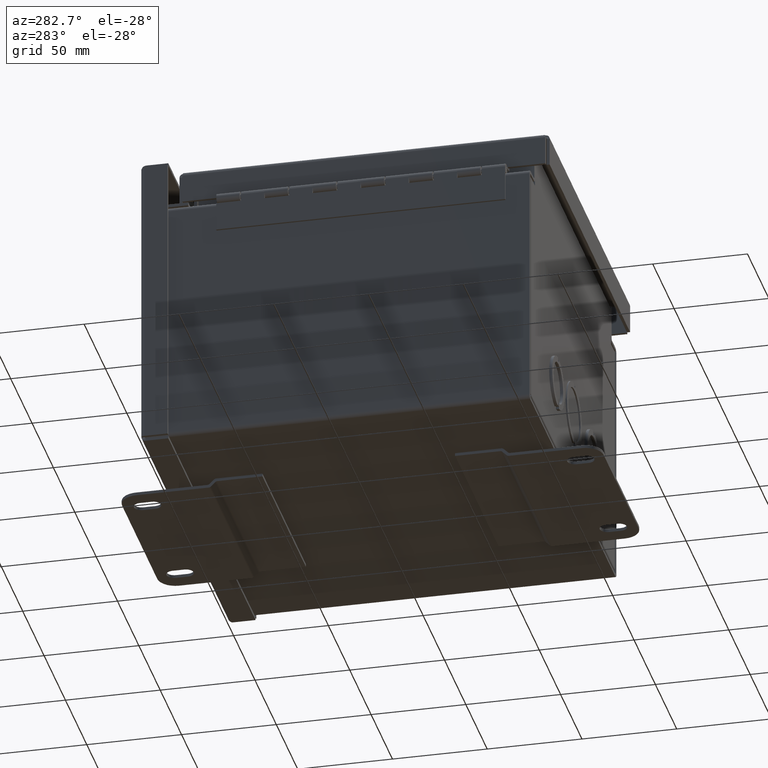
[diagram: clean part render]
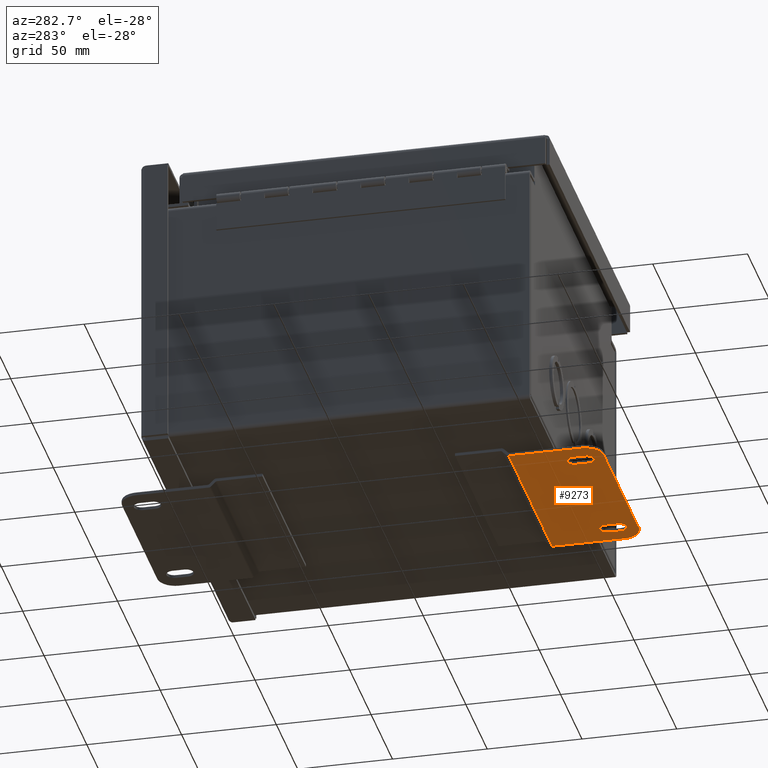
[diagram: same view with one face highlighted and labeled with its STEP entity id]
A machine part, auxiliary view. The second image highlights one B-rep face of the part: STEP entity #9273.
In plain terms, the highlighted planar face has unit normal (0, 0, -1).
Its self-contained STEP definition (entity closure, byte-faithful):
#188=FACE_BOUND($,#1510,.T.);
#189=FACE_BOUND($,#1511,.T.);
#190=FACE_BOUND($,#1512,.T.);
#546=PLANE($,#9904);
#1510=EDGE_LOOP($,(#7324,#7325,#7326,#7327));
#1511=EDGE_LOOP($,(#7328,#7329,#7330,#7331));
#1512=EDGE_LOOP($,(#7332,#7333,#7334,#7335,#7336,#7337));
#1874=CIRCLE($,#9885,0.15625);
#1876=CIRCLE($,#9889,0.15625);
#1878=CIRCLE($,#9893,0.15625);
#1880=CIRCLE($,#9897,0.15625);
#1882=CIRCLE($,#9901,0.375);
#1884=CIRCLE($,#9905,0.375);
#2608=LINE($,#14834,#3534);
#2612=LINE($,#14845,#3538);
#2616=LINE($,#14858,#3542);
#2620=LINE($,#14869,#3546);
#2624=LINE($,#14882,#3550);
#2627=LINE($,#14888,#3553);
#2628=LINE($,#14890,#3554);
#2629=LINE($,#14892,#3555);
#3534=VECTOR($,#11619,0.25);
#3538=VECTOR($,#11631,0.25);
#3542=VECTOR($,#11643,0.25);
#3546=VECTOR($,#11655,0.25);
#3550=VECTOR($,#11667,3.25);
#3553=VECTOR($,#11672,1.50822330470336);
#3554=VECTOR($,#11673,4.);
#3555=VECTOR($,#11674,1.50822330470336);
#4284=VERTEX_POINT($,#14824);
#4285=VERTEX_POINT($,#14825);
#4288=VERTEX_POINT($,#14833);
#4290=VERTEX_POINT($,#14839);
#4292=VERTEX_POINT($,#14848);
#4293=VERTEX_POINT($,#14849);
#4296=VERTEX_POINT($,#14857);
#4298=VERTEX_POINT($,#14863);
#4300=VERTEX_POINT($,#14872);
#4301=VERTEX_POINT($,#14873);
#4304=VERTEX_POINT($,#14881);
#4306=VERTEX_POINT($,#14887);
#4307=VERTEX_POINT($,#14889);
#4308=VERTEX_POINT($,#14891);
#5341=EDGE_CURVE($,#4284,#4285,#1874,.T.);
#5345=EDGE_CURVE($,#4285,#4288,#2608,.T.);
#5348=EDGE_CURVE($,#4288,#4290,#1876,.T.);
#5351=EDGE_CURVE($,#4290,#4284,#2612,.T.);
#5353=EDGE_CURVE($,#4292,#4293,#1878,.T.);
#5357=EDGE_CURVE($,#4293,#4296,#2616,.T.);
#5360=EDGE_CURVE($,#4296,#4298,#1880,.T.);
#5363=EDGE_CURVE($,#4298,#4292,#2620,.T.);
#5365=EDGE_CURVE($,#4300,#4301,#1882,.T.);
#5369=EDGE_CURVE($,#4301,#4304,#2624,.T.);
#5372=EDGE_CURVE($,#4300,#4306,#2627,.T.);
#5373=EDGE_CURVE($,#4306,#4307,#2628,.T.);
#5374=EDGE_CURVE($,#4307,#4308,#2629,.T.);
#5375=EDGE_CURVE($,#4304,#4308,#1884,.T.);
#7324=ORIENTED_EDGE($,*,*,#5348,.T.);
#7325=ORIENTED_EDGE($,*,*,#5351,.T.);
#7326=ORIENTED_EDGE($,*,*,#5341,.T.);
#7327=ORIENTED_EDGE($,*,*,#5345,.T.);
#7328=ORIENTED_EDGE($,*,*,#5360,.T.);
#7329=ORIENTED_EDGE($,*,*,#5363,.T.);
#7330=ORIENTED_EDGE($,*,*,#5353,.T.);
#7331=ORIENTED_EDGE($,*,*,#5357,.T.);
#7332=ORIENTED_EDGE($,*,*,#5365,.F.);
#7333=ORIENTED_EDGE($,*,*,#5372,.T.);
#7334=ORIENTED_EDGE($,*,*,#5373,.T.);
#7335=ORIENTED_EDGE($,*,*,#5374,.T.);
#7336=ORIENTED_EDGE($,*,*,#5375,.F.);
#7337=ORIENTED_EDGE($,*,*,#5369,.F.);
#9273=ADVANCED_FACE($,(#188,#189,#190),#546,.T.);
#9885=AXIS2_PLACEMENT_3D($,#14826,#11611,#11612);
#9889=AXIS2_PLACEMENT_3D($,#14840,#11624,#11625);
#9893=AXIS2_PLACEMENT_3D($,#14850,#11635,#11636);
#9897=AXIS2_PLACEMENT_3D($,#14864,#11648,#11649);
#9901=AXIS2_PLACEMENT_3D($,#14874,#11659,#11660);
#9904=AXIS2_PLACEMENT_3D($,#14886,#11670,#11671);
#9905=AXIS2_PLACEMENT_3D($,#14893,#11675,#11676);
#11611=DIRECTION('center_axis',(1.,1.16049880514603E-017,0.));
#11612=DIRECTION('ref_axis',(0.,3.58068780225577E-014,-1.));
#11619=DIRECTION($,(1.16049880514603E-017,-1.,0.));
#11624=DIRECTION('center_axis',(1.,1.16049880514603E-017,0.));
#11625=DIRECTION('ref_axis',(0.,0.,1.));
#11631=DIRECTION($,(-1.16049880514603E-017,1.,0.));
#11635=DIRECTION('center_axis',(1.,1.16049880514603E-017,0.));
#11636=DIRECTION('ref_axis',(0.,4.47585975281947E-015,-1.));
#11643=DIRECTION($,(1.16049880514603E-017,-1.,0.));
#11648=DIRECTION('center_axis',(1.,1.16049880514603E-017,0.));
#11649=DIRECTION('ref_axis',(0.,0.,1.));
#11655=DIRECTION($,(-1.16049880514603E-017,1.,-3.49676543189026E-016));
#11659=DIRECTION('center_axis',(1.,1.16049880514603E-017,0.));
#11660=DIRECTION('ref_axis',(0.,0.707106781186548,-0.707106781186547));
#11667=DIRECTION($,(0.,0.,1.));
#11670=DIRECTION('center_axis',(-1.,-1.16049880514603E-017,0.));
#11671=DIRECTION('ref_axis',(0.,0.,1.));
#11672=DIRECTION($,(1.16049880514603E-017,-1.,0.));
#11673=DIRECTION($,(0.,0.,1.));
#11674=DIRECTION($,(-1.16049880514603E-017,1.,0.));
#11675=DIRECTION('center_axis',(1.,1.16049880514603E-017,0.));
#11676=DIRECTION('ref_axis',(0.,0.707106781186547,0.707106781186547));
#14824=CARTESIAN_POINT('',(-0.1275,2.625,0.343750000000006));
#14825=CARTESIAN_POINT('',(-0.1275,2.625,0.65625));
#14826=CARTESIAN_POINT('Origin',(-0.1275,2.62499999999999,0.5));
#14833=CARTESIAN_POINT('',(-0.1275,2.375,0.65625));
#14834=CARTESIAN_POINT($,(-0.1275,1.87088834764832,0.65625));
#14839=CARTESIAN_POINT('',(-0.1275,2.375,0.343750000000006));
#14840=CARTESIAN_POINT('Origin',(-0.1275,2.375,0.500000000000007));
#14845=CARTESIAN_POINT($,(-0.1275,1.80838834764832,0.343750000000007));
#14848=CARTESIAN_POINT('',(-0.1275,2.625,3.34375));
#14849=CARTESIAN_POINT('',(-0.1275,2.625,3.65625));
#14850=CARTESIAN_POINT('Origin',(-0.1275,2.625,3.5));
#14857=CARTESIAN_POINT('',(-0.1275,2.375,3.65625));
#14858=CARTESIAN_POINT($,(-0.1275,1.87088834764832,3.65625));
#14863=CARTESIAN_POINT('',(-0.1275,2.375,3.34375));
#14864=CARTESIAN_POINT('Origin',(-0.1275,2.375,3.5));
#14869=CARTESIAN_POINT($,(-0.1275,1.80838834764832,3.34375));
#14872=CARTESIAN_POINT('',(-0.1275,2.625,0.));
#14873=CARTESIAN_POINT('',(-0.1275,3.,0.375));
#14874=CARTESIAN_POINT('Origin',(-0.1275,2.625,0.375));
#14881=CARTESIAN_POINT('',(-0.1275,3.,3.625));
#14882=CARTESIAN_POINT($,(-0.1275,3.,0.));
#14886=CARTESIAN_POINT('Origin',(-0.1275,1.11677669529664,0.));
#14887=CARTESIAN_POINT('',(-0.1275,1.11677669529664,0.));
#14888=CARTESIAN_POINT($,(-0.1275,3.,0.));
#14889=CARTESIAN_POINT('',(-0.1275,1.11677669529664,4.));
#14890=CARTESIAN_POINT($,(-0.1275,1.11677669529664,0.));
#14891=CARTESIAN_POINT('',(-0.1275,2.625,4.));
#14892=CARTESIAN_POINT($,(-0.1275,3.,4.));
#14893=CARTESIAN_POINT('Origin',(-0.1275,2.625,3.625));